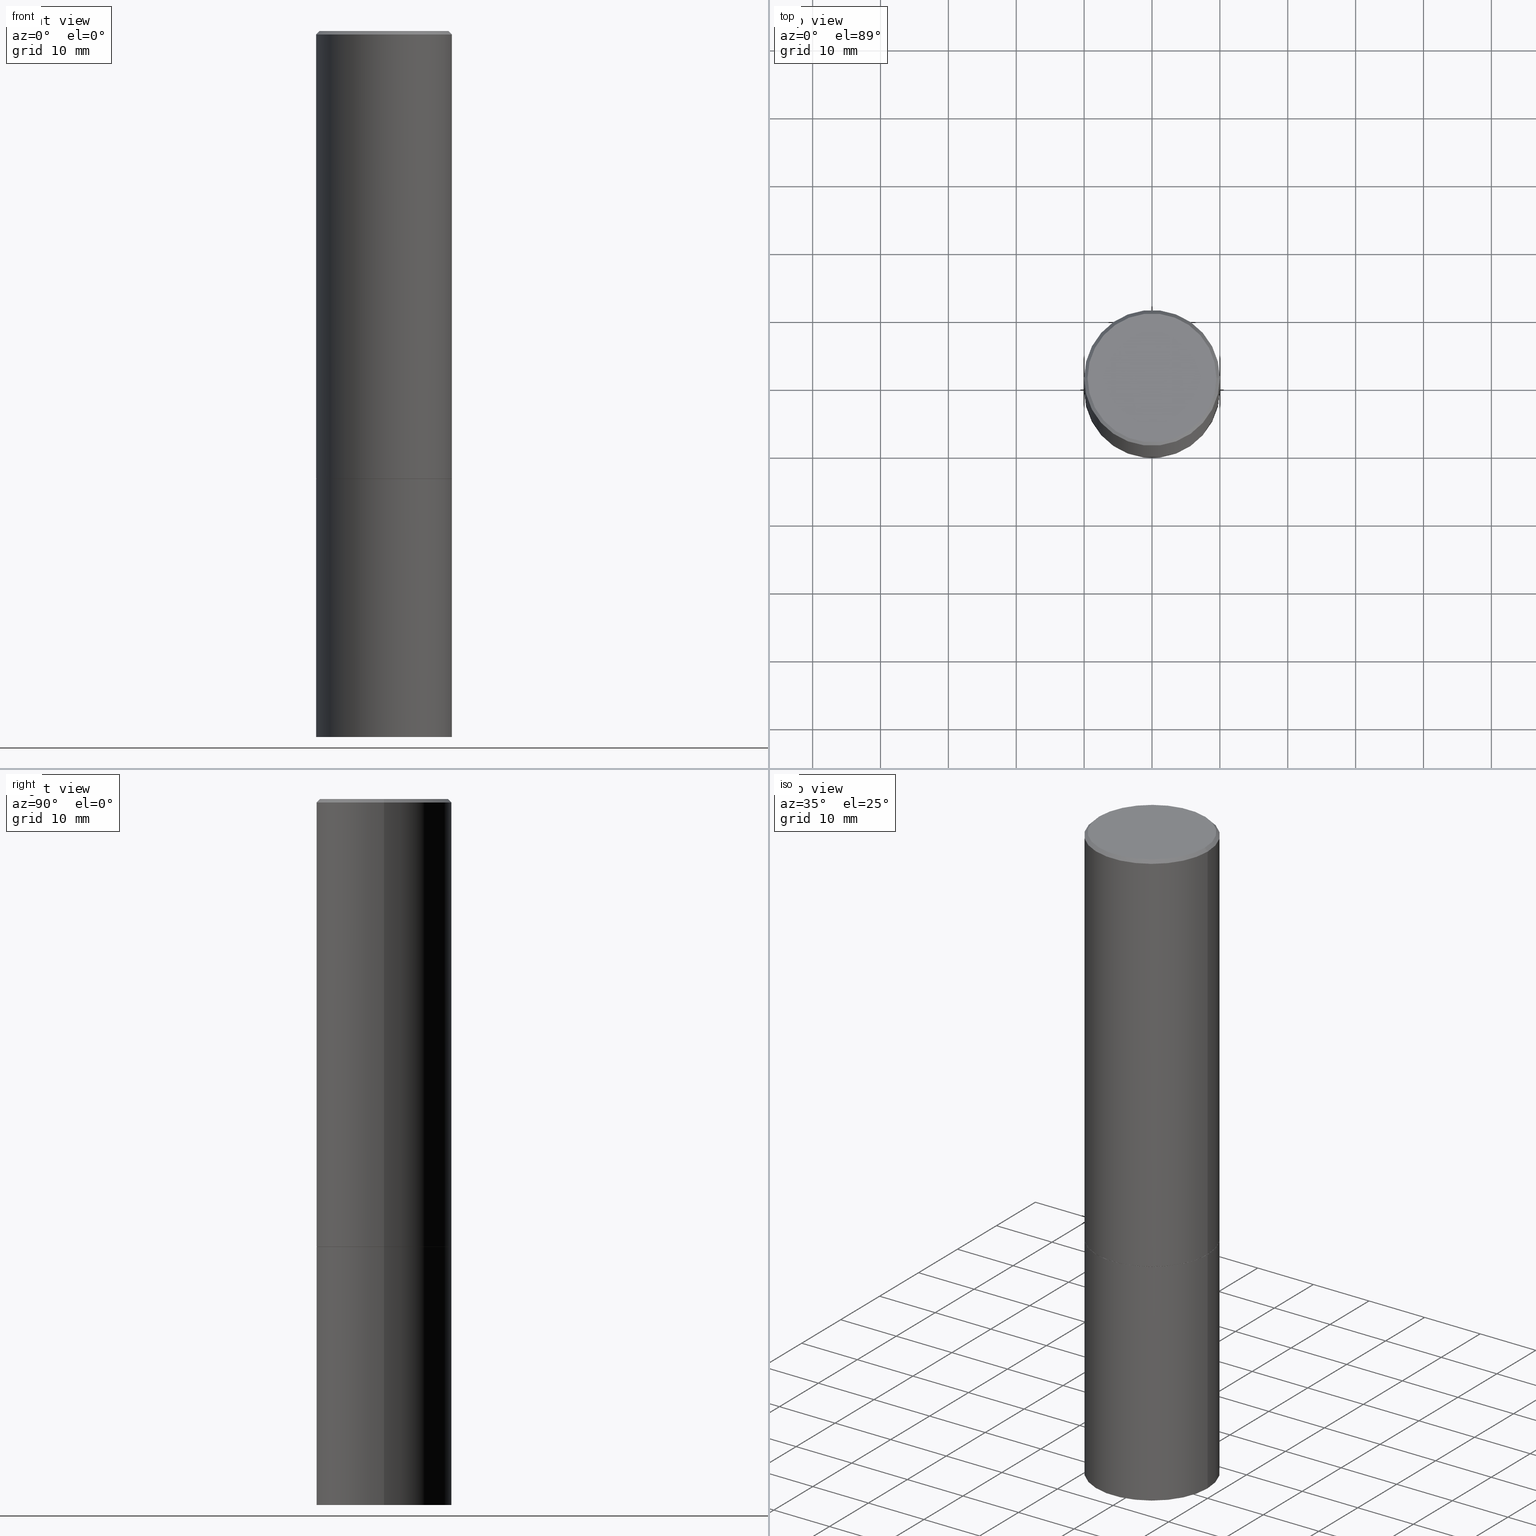
[diagram: canonical four-view strip — front | top / right | iso, engineering-drawing reading convention]
A machine part, canonical four-view strip (front | top / right | iso — engineering-drawing reading convention). The complete STEP part file that produces these views, byte-faithful:
ISO-10303-21;
HEADER;
FILE_DESCRIPTION (( 'STEP AP203' ),
    '1' );
FILE_NAME ('45499.STEP',
    '2024-02-28T09:58:27',
    ( '' ),
    ( '' ),
    'SwSTEP 2.0',
    'SolidWorks 2023',
    '' );
FILE_SCHEMA (( 'CONFIG_CONTROL_DESIGN' ));
ENDSEC;

DATA;
#1 = DIRECTION ( 'NONE',  ( 1.000000000000000000, -6.982962677686265922E-15, 4.876176775795935793E-29 ) ) ;
#2 = AXIS2_PLACEMENT_3D ( 'NONE', #294, #260, #291 ) ;
#3 = EDGE_CURVE ( 'NONE', #96, #55, #353, .T. ) ;
#4 = ADVANCED_FACE ( 'NONE', ( #40 ), #178, .T. ) ;
#5 = CARTESIAN_POINT ( 'NONE',  ( 0.3936999999999996613, -2.770807688499512973E-15, -0.02000000000000010103 ) ) ;
#6 = FACE_OUTER_BOUND ( 'NONE', #313, .T. ) ;
#7 = FACE_OUTER_BOUND ( 'NONE', #62, .T. ) ;
#8 = CC_DESIGN_PERSON_AND_ORGANIZATION_ASSIGNMENT ( #202, #84, ( #140 ) ) ;
#9 = CYLINDRICAL_SURFACE ( 'NONE', #328, 0.3937000000000000499 ) ;
#10 = EDGE_LOOP ( 'NONE', ( #139, #253, #93, #60 ) ) ;
#11 = CYLINDRICAL_SURFACE ( 'NONE', #223, 0.3936999999999998279 ) ;
#12 = CARTESIAN_POINT ( 'NONE',  ( 1.001297202692504215E-28, -1.429587034189326149E-14, -4.094500000000000028 ) ) ;
#13 = DIRECTION ( 'NONE',  ( 0.7071067811870063169, -2.468850131087062801E-15, 0.7071067811860887176 ) ) ;
#14 = CARTESIAN_POINT ( 'NONE',  ( -0.3936999999999996613, 2.679362779428217552E-15, -0.02000000000000010103 ) ) ;
#15 = AXIS2_PLACEMENT_3D ( 'NONE', #155, #295, #351 ) ;
#16 = DIRECTION ( 'NONE',  ( 2.445468806185136597E-29, -3.491481338843145583E-15, -1.000000000000000000 ) ) ;
#17 = EDGE_CURVE ( 'NONE', #96, #143, #222, .T. ) ;
#18 = CIRCLE ( 'NONE', #63, 0.3736999999999996436 ) ;
#19 = VERTEX_POINT ( 'NONE', #148 ) ;
#20 = APPROVAL_STATUS ( 'not_yet_approved' ) ;
#21 = CC_DESIGN_PERSON_AND_ORGANIZATION_ASSIGNMENT ( #336, #95, ( #109 ) ) ;
#22 = DIRECTION ( 'NONE',  ( 1.000000000000000000, -6.982962677686266711E-15, 4.876176775795935793E-29 ) ) ;
#23 = AXIS2_PLACEMENT_3D ( 'NONE', #39, #220, #154 ) ;
#24 = ADVANCED_BREP_SHAPE_REPRESENTATION ( '45499', ( #322, #330, #23 ), #179 ) ;
#25 = APPROVAL_DATE_TIME ( #360, #270 ) ;
#26 = VERTEX_POINT ( 'NONE', #263 ) ;
#27 = COORDINATED_UNIVERSAL_TIME_OFFSET ( 5, 0, .BEHIND. ) ;
#28 = ORIENTED_EDGE ( 'NONE', *, *, #357, .F. ) ;
#29 = CIRCLE ( 'NONE', #268, 0.3926999999999999935 ) ;
#30 = LOCAL_TIME ( 4, 58, 27.00000000000000000, #288 ) ;
#31 = ORIENTED_EDGE ( 'NONE', *, *, #254, .T. ) ;
#32 = ORIENTED_EDGE ( 'NONE', *, *, #189, .T. ) ;
#33 = CARTESIAN_POINT ( 'NONE',  ( 6.351860677185276395E-29, -9.068773629511191193E-15, -2.597400000000001263 ) ) ;
#34 = DIRECTION ( 'NONE',  ( 1.000000000000000000, -6.982962677686265133E-15, 0.000000000000000000 ) ) ;
#35 = AXIS2_PLACEMENT_3D ( 'NONE', #33, #208, #73 ) ;
#36 = DIRECTION ( 'NONE',  ( -1.000000000000000000, 6.982962677686266711E-15, 0.000000000000000000 ) ) ;
#37 = CARTESIAN_POINT ( 'NONE',  ( -2.087702828670439639E-46, 2.980686340760894400E-32, 8.537024980200822558E-18 ) ) ;
#38 = LOCAL_TIME ( 4, 58, 27.00000000000000000, #53 ) ;
#39 = CARTESIAN_POINT ( 'NONE',  ( 0.000000000000000000, 0.000000000000000000, 0.000000000000000000 ) ) ;
#40 = FACE_OUTER_BOUND ( 'NONE', #10, .T. ) ;
#41 = CARTESIAN_POINT ( 'NONE',  ( -0.3936999999999996613, 2.679362779428217552E-15, -0.02000000000000010103 ) ) ;
#42 = ADVANCED_FACE ( 'NONE', ( #6 ), #70, .T. ) ;
#43 = ADVANCED_FACE ( 'NONE', ( #225 ), #338, .F. ) ;
#44 = CARTESIAN_POINT ( 'NONE',  ( -0.3937000000000000499, -8.886660975684131482E-15, -4.094500000000000028 ) ) ;
#45 = CARTESIAN_POINT ( 'NONE',  ( 0.000000000000000000, 0.000000000000000000, 0.000000000000000000 ) ) ;
#46 = ORIENTED_EDGE ( 'NONE', *, *, #77, .T. ) ;
#47 = DESIGN_CONTEXT ( 'detailed design', #94, 'design' ) ;
#48 =( NAMED_UNIT ( * ) SI_UNIT ( $, .STERADIAN. ) SOLID_ANGLE_UNIT ( ) );
#49 = CIRCLE ( 'NONE', #197, 0.3937000000000000499 ) ;
#50 = CARTESIAN_POINT ( 'NONE',  ( -0.3736999999999996436, 2.644447966039786297E-15, 8.537024980182450727E-18 ) ) ;
#51 = DIRECTION ( 'NONE',  ( -1.000000000000000000, 6.982962677686265922E-15, -4.876176775795935793E-29 ) ) ;
#52 = CARTESIAN_POINT ( 'NONE',  ( 4.890937612370298557E-31, -6.982962677686327354E-17, -0.02000000000000010103 ) ) ;
#53 = COORDINATED_UNIVERSAL_TIME_OFFSET ( 5, 0, .BEHIND. ) ;
#54 = DATE_AND_TIME ( #283, #333 ) ;
#55 = VERTEX_POINT ( 'NONE', #134 ) ;
#56 = ORIENTED_EDGE ( 'NONE', *, *, #123, .F. ) ;
#57 = PERSON ( 'UNSPECIFIED', 'UNSPECIFIED', 'UNSPECIFIED', ('UNSPECIFIED'), ('UNSPECIFIED'), ('UNSPECIFIED') ) ;
#58 = EDGE_CURVE ( 'NONE', #85, #339, #184, .T. ) ;
#59 = PERSON_AND_ORGANIZATION_ROLE ( 'classification_officer' ) ;
#60 = ORIENTED_EDGE ( 'NONE', *, *, #254, .F. ) ;
#61 = APPROVAL_STATUS ( 'not_yet_approved' ) ;
#62 = EDGE_LOOP ( 'NONE', ( #355, #170, #331, #198 ) ) ;
#63 = AXIS2_PLACEMENT_3D ( 'NONE', #37, #128, #124 ) ;
#64 = ORIENTED_EDGE ( 'NONE', *, *, #252, .T. ) ;
#65 = DIRECTION ( 'NONE',  ( -1.000000000000000000, 6.982962677686265922E-15, -4.876176775795935793E-29 ) ) ;
#66 = DIRECTION ( 'NONE',  ( 1.000000000000000000, -6.982962677686265133E-15, 0.000000000000000000 ) ) ;
#67 = CARTESIAN_POINT ( 'NONE',  ( 0.3736999999999996436, -2.667287895133365992E-15, 8.537024980219274507E-18 ) ) ;
#68 = DIRECTION ( 'NONE',  ( 1.000000000000000000, -6.982962677686265922E-15, 4.876176775795935793E-29 ) ) ;
#69 = AXIS2_PLACEMENT_3D ( 'NONE', #12, #153, #209 ) ;
#70 = CYLINDRICAL_SURFACE ( 'NONE', #285, 0.3936999999999998279 ) ;
#71 = AXIS2_PLACEMENT_3D ( 'NONE', #165, #326, #51 ) ;
#72 = DIRECTION ( 'NONE',  ( 1.000000000000000000, -6.982962677686267499E-15, 0.000000000000000000 ) ) ;
#73 = DIRECTION ( 'NONE',  ( 1.000000000000000000, -6.982962677686267499E-15, 0.000000000000000000 ) ) ;
#74 = CC_DESIGN_APPROVAL ( #80, ( #140 ) ) ;
#75 = PLANE ( 'NONE',  #89 ) ;
#76 = EDGE_CURVE ( 'NONE', #143, #257, #107, .T. ) ;
#77 = EDGE_CURVE ( 'NONE', #339, #19, #211, .T. ) ;
#78 =( CONVERSION_BASED_UNIT ( 'INCH', #329 ) LENGTH_UNIT ( ) NAMED_UNIT ( #344 ) );
#79 = CARTESIAN_POINT ( 'NONE',  ( 6.354306145991457514E-29, -9.072265110850029467E-15, -2.598399999999999821 ) ) ;
#80 = APPROVAL ( #20, 'UNSPECIFIED' ) ;
#81 = CONICAL_SURFACE ( 'NONE', #255, 0.3926999999999999935, 0.7853981633980972044 ) ;
#82 = SECURITY_CLASSIFICATION_LEVEL ( 'unclassified' ) ;
#83 = PRODUCT_DEFINITION_SHAPE ( 'NONE', 'NONE',  #140 ) ;
#84 = PERSON_AND_ORGANIZATION_ROLE ( 'creator' ) ;
#85 = VERTEX_POINT ( 'NONE', #50 ) ;
#86 = DATE_TIME_ROLE ( 'creation_date' ) ;
#87 = EDGE_LOOP ( 'NONE', ( #277, #282, #169, #46 ) ) ;
#88 = VECTOR ( 'NONE', #130, 39.37007874015748143 ) ;
#89 = AXIS2_PLACEMENT_3D ( 'NONE', #186, #352, #269 ) ;
#90 = ADVANCED_FACE ( 'NONE', ( #248 ), #81, .T. ) ;
#91 = ADVANCED_FACE ( 'NONE', ( #166 ), #11, .T. ) ;
#92 = SHAPE_DEFINITION_REPRESENTATION ( #83, #24 ) ;
#93 = ORIENTED_EDGE ( 'NONE', *, *, #357, .T. ) ;
#94 = APPLICATION_CONTEXT ( 'configuration controlled 3d designs of mechanical parts and assemblies' ) ;
#95 = PERSON_AND_ORGANIZATION_ROLE ( 'design_supplier' ) ;
#96 = VERTEX_POINT ( 'NONE', #44 ) ;
#97 = LINE ( 'NONE', #182, #192 ) ;
#98 = VECTOR ( 'NONE', #122, 39.37007874015748143 ) ;
#99 = CARTESIAN_POINT ( 'NONE',  ( 6.354306145991459756E-29, -9.072265110850031044E-15, -2.598400000000000265 ) ) ;
#100 = CARTESIAN_POINT ( 'NONE',  ( 4.890937612370298557E-31, -6.982962677686327354E-17, -0.02000000000000010103 ) ) ;
#101 = AXIS2_PLACEMENT_3D ( 'NONE', #99, #346, #264 ) ;
#102 = DIRECTION ( 'NONE',  ( -2.445468806185136597E-29, 3.491481338843145583E-15, 1.000000000000000000 ) ) ;
#103 = PLANE ( 'NONE',  #71 ) ;
#104 = CLOSED_SHELL ( 'NONE', ( #90, #91, #279, #149, #42, #4, #43, #319 ) ) ;
#105 = AXIS2_PLACEMENT_3D ( 'NONE', #206, #121, #324 ) ;
#106 = EDGE_CURVE ( 'NONE', #306, #299, #349, .T. ) ;
#107 = LINE ( 'NONE', #137, #364 ) ;
#108 = DIRECTION ( 'NONE',  ( -2.445468806185136877E-29, 3.491481338843145188E-15, 1.000000000000000000 ) ) ;
#109 = PRODUCT_DEFINITION_FORMATION_WITH_SPECIFIED_SOURCE ( 'ANY', '', #258, .NOT_KNOWN. ) ;
#110 = DATE_AND_TIME ( #361, #30 ) ;
#111 = CARTESIAN_POINT ( 'NONE',  ( 0.000000000000000000, 0.000000000000000000, 0.000000000000000000 ) ) ;
#112 = PERSON_AND_ORGANIZATION ( #57, #345 ) ;
#113 = EDGE_LOOP ( 'NONE', ( #64, #157 ) ) ;
#114 = APPROVAL_ROLE ( '' ) ;
#115 = EDGE_CURVE ( 'NONE', #196, #85, #365, .T. ) ;
#116 = ORIENTED_EDGE ( 'NONE', *, *, #241, .F. ) ;
#117 = DIRECTION ( 'NONE',  ( -2.438088387897960049E-29, 3.491481338843145188E-15, 1.000000000000000000 ) ) ;
#118 = EDGE_LOOP ( 'NONE', ( #32, #358, #363, #246 ) ) ;
#119 = APPROVAL_PERSON_ORGANIZATION ( #112, #286, #114 ) ;
#120 = CALENDAR_DATE ( 2024, 28, 2 ) ;
#121 = DIRECTION ( 'NONE',  ( -2.445468806185136597E-29, 3.491481338843145583E-15, 1.000000000000000000 ) ) ;
#122 = DIRECTION ( 'NONE',  ( 0.7071067811865466846, -7.319954787623252890E-15, -0.7071067811865483499 ) ) ;
#123 = EDGE_CURVE ( 'NONE', #26, #19, #151, .T. ) ;
#124 = DIRECTION ( 'NONE',  ( 1.000000000000000000, -6.982962677686266711E-15, 4.876212485538980163E-29 ) ) ;
#125 = EDGE_CURVE ( 'NONE', #55, #257, #49, .T. ) ;
#126 = AXIS2_PLACEMENT_3D ( 'NONE', #52, #159, #303 ) ;
#127 = AXIS2_PLACEMENT_3D ( 'NONE', #215, #272, #356 ) ;
#128 = DIRECTION ( 'NONE',  ( -2.445468806185136597E-29, 3.491481338843145583E-15, 1.000000000000000000 ) ) ;
#129 = CC_DESIGN_DATE_AND_TIME_ASSIGNMENT ( #110, #281, ( #199 ) ) ;
#130 = DIRECTION ( 'NONE',  ( -2.445468806185136877E-29, 3.491481338843145188E-15, 1.000000000000000000 ) ) ;
#131 = CARTESIAN_POINT ( 'NONE',  ( 0.000000000000000000, 0.000000000000000000, 0.000000000000000000 ) ) ;
#132 = EDGE_CURVE ( 'NONE', #299, #341, #97, .T. ) ;
#133 = CARTESIAN_POINT ( 'NONE',  ( 0.3926999999999999935, -1.181447455437742667E-14, -2.598399999999999821 ) ) ;
#134 = CARTESIAN_POINT ( 'NONE',  ( -0.3937000000000000499, -8.886660975684131482E-15, -2.598400000000000265 ) ) ;
#135 = APPLICATION_PROTOCOL_DEFINITION ( 'international standard', 'config_control_design', 1994, #221 ) ;
#136 = DATE_AND_TIME ( #226, #234 ) ;
#137 = CARTESIAN_POINT ( 'NONE',  ( 0.3937000000000000499, -2.749192406205083217E-15, 1.919750796630860172E-29 ) ) ;
#138 = PERSON_AND_ORGANIZATION ( #57, #345 ) ;
#139 = ORIENTED_EDGE ( 'NONE', *, *, #132, .F. ) ;
#140 = PRODUCT_DEFINITION ( 'UNKNOWN', '', #109, #47 ) ;
#141 = DATE_AND_TIME ( #120, #321 ) ;
#142 = ORIENTED_EDGE ( 'NONE', *, *, #106, .F. ) ;
#143 = VERTEX_POINT ( 'NONE', #150 ) ;
#144 = ORIENTED_EDGE ( 'NONE', *, *, #189, .F. ) ;
#145 = PLANE ( 'NONE',  #308 ) ;
#146 = DIRECTION ( 'NONE',  ( -0.7071067811870063169, 7.493145998872012346E-15, 0.7071067811860887176 ) ) ;
#147 = VECTOR ( 'NONE', #210, 39.37007874015748143 ) ;
#148 = CARTESIAN_POINT ( 'NONE',  ( 0.3936999999999996613, -2.770807688499512973E-15, -0.02000000000000010103 ) ) ;
#149 = ADVANCED_FACE ( 'NONE', ( #237 ), #245, .T. ) ;
#150 = CARTESIAN_POINT ( 'NONE',  ( 0.3937000000000000499, -1.704506274809834471E-14, -4.094500000000000028 ) ) ;
#151 = LINE ( 'NONE', #293, #167 ) ;
#152 = DIRECTION ( 'NONE',  ( -2.445468806185136597E-29, 3.491481338843145583E-15, 1.000000000000000000 ) ) ;
#153 = DIRECTION ( 'NONE',  ( -2.445468806185136597E-29, 3.491481338843145583E-15, 1.000000000000000000 ) ) ;
#154 = DIRECTION ( 'NONE',  ( 1.000000000000000000, 0.000000000000000000, 0.000000000000000000 ) ) ;
#155 = CARTESIAN_POINT ( 'NONE',  ( 6.354306145991457514E-29, -9.072265110850029467E-15, -2.598399999999999821 ) ) ;
#156 = CARTESIAN_POINT ( 'NONE',  ( 0.3926999999999999935, -1.181447455437742667E-14, -2.598399999999999821 ) ) ;
#157 = ORIENTED_EDGE ( 'NONE', *, *, #125, .T. ) ;
#158 =( NAMED_UNIT ( * ) PLANE_ANGLE_UNIT ( ) SI_UNIT ( $, .RADIAN. ) );
#159 = DIRECTION ( 'NONE',  ( -2.445468806185136597E-29, 3.491481338843145583E-15, 1.000000000000000000 ) ) ;
#160 = VECTOR ( 'NONE', #243, 39.37007874015748143 ) ;
#161 = CC_DESIGN_APPROVAL ( #286, ( #109 ) ) ;
#162 = CARTESIAN_POINT ( 'NONE',  ( -0.3937000000000000499, 2.797406750687514786E-15, -1.936584745033356735E-29 ) ) ;
#163 = APPLICATION_PROTOCOL_DEFINITION ( 'international standard', 'config_control_design', 1994, #94 ) ;
#164 = ORIENTED_EDGE ( 'NONE', *, *, #76, .T. ) ;
#165 = CARTESIAN_POINT ( 'NONE',  ( 2.609533152651354648E-15, 0.3736999999999996436, -1.300498063835581828E-15 ) ) ;
#166 = FACE_OUTER_BOUND ( 'NONE', #227, .T. ) ;
#167 = VECTOR ( 'NONE', #323, 39.37007874015748143 ) ;
#168 = PERSON_AND_ORGANIZATION ( #57, #345 ) ;
#169 = ORIENTED_EDGE ( 'NONE', *, *, #58, .T. ) ;
#170 = ORIENTED_EDGE ( 'NONE', *, *, #271, .T. ) ;
#171 = ORIENTED_EDGE ( 'NONE', *, *, #123, .T. ) ;
#172 = APPROVAL_DATE_TIME ( #141, #286 ) ;
#173 = CIRCLE ( 'NONE', #101, 0.3937000000000000499 ) ;
#174 = ORIENTED_EDGE ( 'NONE', *, *, #273, .F. ) ;
#175 = DIRECTION ( 'NONE',  ( -2.445468806185136597E-29, 3.491481338843145583E-15, 1.000000000000000000 ) ) ;
#176 = ADVANCED_FACE ( 'NONE', ( #350 ), #9, .T. ) ;
#177 = DIRECTION ( 'NONE',  ( -2.445468806185136597E-29, 3.491481338843145583E-15, 1.000000000000000000 ) ) ;
#178 = CONICAL_SURFACE ( 'NONE', #15, 0.3926999999999999935, 0.7853981633980972044 ) ;
#179 =( GEOMETRIC_REPRESENTATION_CONTEXT ( 3 ) GLOBAL_UNCERTAINTY_ASSIGNED_CONTEXT ( ( #181 ) ) GLOBAL_UNIT_ASSIGNED_CONTEXT ( ( #78, #158, #48 ) ) REPRESENTATION_CONTEXT ( 'NONE', 'WORKASPACE' ) );
#180 = DIRECTION ( 'NONE',  ( 2.445468806185136597E-29, -3.491481338843145583E-15, -1.000000000000000000 ) ) ;
#181 = UNCERTAINTY_MEASURE_WITH_UNIT (LENGTH_MEASURE( 1.000000000000000082E-05 ), #78, 'distance_accuracy_value', 'NONE');
#182 = CARTESIAN_POINT ( 'NONE',  ( -0.3926999999999999935, -6.281963787520115688E-15, -2.598399999999999821 ) ) ;
#183 = LINE ( 'NONE', #156, #292 ) ;
#184 = LINE ( 'NONE', #14, #160 ) ;
#185 = APPROVAL_PERSON_ORGANIZATION ( #332, #80, #256 ) ;
#186 = CARTESIAN_POINT ( 'NONE',  ( 2.749192406205146325E-15, 0.3936999999999909461, -2.598400000000002041 ) ) ;
#187 = FACE_OUTER_BOUND ( 'NONE', #289, .T. ) ;
#188 = DIRECTION ( 'NONE',  ( -2.445468806185136597E-29, 3.491481338843145583E-15, 1.000000000000000000 ) ) ;
#189 = EDGE_CURVE ( 'NONE', #143, #96, #261, .T. ) ;
#190 = EDGE_CURVE ( 'NONE', #85, #196, #18, .T. ) ;
#191 = PERSON_AND_ORGANIZATION ( #57, #345 ) ;
#192 = VECTOR ( 'NONE', #146, 39.37007874015748143 ) ;
#193 =( LENGTH_UNIT ( ) NAMED_UNIT ( * ) SI_UNIT ( $, .METRE. ) );
#194 = DIRECTION ( 'NONE',  ( 1.000000000000000000, -6.982962677686266711E-15, 4.876176775795935793E-29 ) ) ;
#195 = APPROVAL_ROLE ( '' ) ;
#196 = VERTEX_POINT ( 'NONE', #67 ) ;
#197 = AXIS2_PLACEMENT_3D ( 'NONE', #265, #152, #72 ) ;
#198 = ORIENTED_EDGE ( 'NONE', *, *, #58, .F. ) ;
#199 = SECURITY_CLASSIFICATION ( '', '', #82 ) ;
#200 = APPROVAL_STATUS ( 'not_yet_approved' ) ;
#201 = ORIENTED_EDGE ( 'NONE', *, *, #17, .T. ) ;
#202 = PERSON_AND_ORGANIZATION ( #57, #345 ) ;
#203 = EDGE_LOOP ( 'NONE', ( #251, #201, #164, #301 ) ) ;
#204 = ORIENTED_EDGE ( 'NONE', *, *, #132, .T. ) ;
#205 = CIRCLE ( 'NONE', #35, 0.3937000000000000499 ) ;
#206 = CARTESIAN_POINT ( 'NONE',  ( 1.001297202692504215E-28, -1.429587034189326149E-14, -4.094500000000000028 ) ) ;
#207 = APPROVAL_PERSON_ORGANIZATION ( #224, #270, #195 ) ;
#208 = DIRECTION ( 'NONE',  ( -2.445468806185136597E-29, 3.491481338843145583E-15, 1.000000000000000000 ) ) ;
#209 = DIRECTION ( 'NONE',  ( 1.000000000000000000, -6.982962677686267499E-15, 0.000000000000000000 ) ) ;
#210 = DIRECTION ( 'NONE',  ( -2.445468806185136877E-29, 3.491481338843145188E-15, 1.000000000000000000 ) ) ;
#211 = CIRCLE ( 'NONE', #126, 0.3936999999999996613 ) ;
#212 = CIRCLE ( 'NONE', #127, 0.3937000000000000499 ) ;
#213 = DIRECTION ( 'NONE',  ( 2.438088387897960049E-29, -3.491481338843145188E-15, -1.000000000000000000 ) ) ;
#214 = EDGE_LOOP ( 'NONE', ( #144, #309 ) ) ;
#215 = CARTESIAN_POINT ( 'NONE',  ( 6.351860677185276395E-29, -9.068773629511191193E-15, -2.597400000000001263 ) ) ;
#216 = DIRECTION ( 'NONE',  ( 1.000000000000000000, -6.982962677686265922E-15, 4.876176775795935793E-29 ) ) ;
#217 = AXIS2_PLACEMENT_3D ( 'NONE', #366, #177, #66 ) ;
#218 = CYLINDRICAL_SURFACE ( 'NONE', #276, 0.3937000000000000499 ) ;
#219 = ADVANCED_FACE ( 'NONE', ( #317 ), #145, .T. ) ;
#220 = DIRECTION ( 'NONE',  ( 0.000000000000000000, 0.000000000000000000, 1.000000000000000000 ) ) ;
#221 = APPLICATION_CONTEXT ( 'configuration controlled 3d designs of mechanical parts and assemblies' ) ;
#222 = CIRCLE ( 'NONE', #69, 0.3937000000000000499 ) ;
#223 = AXIS2_PLACEMENT_3D ( 'NONE', #111, #300, #22 ) ;
#224 = PERSON_AND_ORGANIZATION ( #57, #345 ) ;
#225 = FACE_OUTER_BOUND ( 'NONE', #311, .T. ) ;
#226 = CALENDAR_DATE ( 2024, 28, 2 ) ;
#227 = EDGE_LOOP ( 'NONE', ( #284, #342, #116, #56 ) ) ;
#228 = CIRCLE ( 'NONE', #267, 0.3936999999999996613 ) ;
#229 = ORIENTED_EDGE ( 'NONE', *, *, #190, .T. ) ;
#230 = CC_DESIGN_SECURITY_CLASSIFICATION ( #199, ( #109 ) ) ;
#231 = CARTESIAN_POINT ( 'NONE',  ( 6.354306145991459756E-29, -9.072265110850031044E-15, -2.598400000000000265 ) ) ;
#232 = CC_DESIGN_PERSON_AND_ORGANIZATION_ASSIGNMENT ( #168, #312, ( #109 ) ) ;
#233 = EDGE_CURVE ( 'NONE', #299, #306, #29, .T. ) ;
#234 = LOCAL_TIME ( 4, 58, 27.00000000000000000, #305 ) ;
#235 = CARTESIAN_POINT ( 'NONE',  ( 4.890937612370298557E-31, -6.982962677686327354E-17, -0.02000000000000010103 ) ) ;
#236 = LINE ( 'NONE', #347, #147 ) ;
#237 = FACE_OUTER_BOUND ( 'NONE', #87, .T. ) ;
#238 = AXIS2_PLACEMENT_3D ( 'NONE', #235, #180, #36 ) ;
#239 = CARTESIAN_POINT ( 'NONE',  ( -0.3926999999999999935, -6.276665333171897231E-15, -2.598399999999999821 ) ) ;
#240 = MECHANICAL_CONTEXT ( 'NONE', #221, 'mechanical' ) ;
#241 = EDGE_CURVE ( 'NONE', #19, #339, #228, .T. ) ;
#242 = FACE_OUTER_BOUND ( 'NONE', #113, .T. ) ;
#243 = DIRECTION ( 'NONE',  ( -0.7071067811865466846, 2.468850131082247989E-15, -0.7071067811865483499 ) ) ;
#244 = CLOSED_SHELL ( 'NONE', ( #280, #219, #318, #176 ) ) ;
#245 = CONICAL_SURFACE ( 'NONE', #238, 0.3936999999999996613, 0.7853981633974471688 ) ;
#246 = ORIENTED_EDGE ( 'NONE', *, *, #76, .F. ) ;
#247 = DIRECTION ( 'NONE',  ( -2.445468806185136597E-29, 3.491481338843145583E-15, 1.000000000000000000 ) ) ;
#248 = FACE_OUTER_BOUND ( 'NONE', #337, .T. ) ;
#249 = CC_DESIGN_APPROVAL ( #270, ( #199 ) ) ;
#250 = CALENDAR_DATE ( 2024, 28, 2 ) ;
#251 = ORIENTED_EDGE ( 'NONE', *, *, #3, .F. ) ;
#252 = EDGE_CURVE ( 'NONE', #257, #55, #173, .T. ) ;
#253 = ORIENTED_EDGE ( 'NONE', *, *, #233, .T. ) ;
#254 = EDGE_CURVE ( 'NONE', #341, #26, #205, .T. ) ;
#255 = AXIS2_PLACEMENT_3D ( 'NONE', #79, #188, #359 ) ;
#256 = APPROVAL_ROLE ( '' ) ;
#257 = VERTEX_POINT ( 'NONE', #262 ) ;
#258 = PRODUCT ( '45499', '45499', '', ( #240 ) ) ;
#259 = ORIENTED_EDGE ( 'NONE', *, *, #77, .F. ) ;
#260 = DIRECTION ( 'NONE',  ( -2.445468806185136597E-29, 3.491481338843145583E-15, 1.000000000000000000 ) ) ;
#261 = CIRCLE ( 'NONE', #105, 0.3937000000000000499 ) ;
#262 = CARTESIAN_POINT ( 'NONE',  ( 0.3937000000000000499, -1.182145751705511584E-14, -2.598400000000000265 ) ) ;
#263 = CARTESIAN_POINT ( 'NONE',  ( 0.3937000000000000499, -1.181796603571627441E-14, -2.597400000000001263 ) ) ;
#264 = DIRECTION ( 'NONE',  ( 1.000000000000000000, -6.982962677686267499E-15, 0.000000000000000000 ) ) ;
#265 = CARTESIAN_POINT ( 'NONE',  ( 6.354306145991459756E-29, -9.072265110850031044E-15, -2.598400000000000265 ) ) ;
#266 = CARTESIAN_POINT ( 'NONE',  ( 0.000000000000000000, 0.000000000000000000, 0.000000000000000000 ) ) ;
#267 = AXIS2_PLACEMENT_3D ( 'NONE', #343, #175, #348 ) ;
#268 = AXIS2_PLACEMENT_3D ( 'NONE', #290, #315, #34 ) ;
#269 = DIRECTION ( 'NONE',  ( -1.000000000000000000, 6.982962677686265922E-15, -4.876176775795935793E-29 ) ) ;
#270 = APPROVAL ( #200, 'UNSPECIFIED' ) ;
#271 = EDGE_CURVE ( 'NONE', #196, #19, #296, .T. ) ;
#272 = DIRECTION ( 'NONE',  ( -2.445468806185136597E-29, 3.491481338843145583E-15, 1.000000000000000000 ) ) ;
#273 = EDGE_CURVE ( 'NONE', #341, #339, #236, .T. ) ;
#274 = FACE_OUTER_BOUND ( 'NONE', #118, .T. ) ;
#275 = COORDINATED_UNIVERSAL_TIME_OFFSET ( 5, 0, .BEHIND. ) ;
#276 = AXIS2_PLACEMENT_3D ( 'NONE', #131, #247, #216 ) ;
#277 = ORIENTED_EDGE ( 'NONE', *, *, #271, .F. ) ;
#278 = PRODUCT_RELATED_PRODUCT_CATEGORY ( 'detail', '', ( #258 ) ) ;
#279 = ADVANCED_FACE ( 'NONE', ( #7 ), #354, .T. ) ;
#280 = ADVANCED_FACE ( 'NONE', ( #274 ), #218, .T. ) ;
#281 = DATE_TIME_ROLE ( 'classification_date' ) ;
#282 = ORIENTED_EDGE ( 'NONE', *, *, #190, .F. ) ;
#283 = CALENDAR_DATE ( 2024, 28, 2 ) ;
#284 = ORIENTED_EDGE ( 'NONE', *, *, #307, .T. ) ;
#285 = AXIS2_PLACEMENT_3D ( 'NONE', #45, #334, #194 ) ;
#286 = APPROVAL ( #61, 'UNSPECIFIED' ) ;
#287 = AXIS2_PLACEMENT_3D ( 'NONE', #100, #16, #304 ) ;
#288 = COORDINATED_UNIVERSAL_TIME_OFFSET ( 5, 0, .BEHIND. ) ;
#289 = EDGE_LOOP ( 'NONE', ( #229, #297 ) ) ;
#290 = CARTESIAN_POINT ( 'NONE',  ( 6.354306145991457514E-29, -9.072265110850029467E-15, -2.598399999999999821 ) ) ;
#291 = DIRECTION ( 'NONE',  ( 1.000000000000000000, -6.982962677686266711E-15, 4.876212485538980163E-29 ) ) ;
#292 = VECTOR ( 'NONE', #13, 39.37007874015748143 ) ;
#293 = CARTESIAN_POINT ( 'NONE',  ( 0.3936999999999998279, -2.749192406205082033E-15, 1.919750796630859051E-29 ) ) ;
#294 = CARTESIAN_POINT ( 'NONE',  ( -2.087702828670439639E-46, 2.980686340760894400E-32, 8.537024980200822558E-18 ) ) ;
#295 = DIRECTION ( 'NONE',  ( -2.445468806185136597E-29, 3.491481338843145583E-15, 1.000000000000000000 ) ) ;
#296 = LINE ( 'NONE', #5, #98 ) ;
#297 = ORIENTED_EDGE ( 'NONE', *, *, #115, .T. ) ;
#298 = CC_DESIGN_PERSON_AND_ORGANIZATION_ASSIGNMENT ( #191, #302, ( #258 ) ) ;
#299 = VERTEX_POINT ( 'NONE', #239 ) ;
#300 = DIRECTION ( 'NONE',  ( -2.445468806185136597E-29, 3.491481338843145583E-15, 1.000000000000000000 ) ) ;
#301 = ORIENTED_EDGE ( 'NONE', *, *, #125, .F. ) ;
#302 = PERSON_AND_ORGANIZATION_ROLE ( 'design_owner' ) ;
#303 = DIRECTION ( 'NONE',  ( 1.000000000000000000, -6.982962677686266711E-15, 0.000000000000000000 ) ) ;
#304 = DIRECTION ( 'NONE',  ( -1.000000000000000000, 6.982962677686266711E-15, 0.000000000000000000 ) ) ;
#305 = COORDINATED_UNIVERSAL_TIME_OFFSET ( 5, 0, .BEHIND. ) ;
#306 = VERTEX_POINT ( 'NONE', #133 ) ;
#307 = EDGE_CURVE ( 'NONE', #26, #341, #212, .T. ) ;
#308 = AXIS2_PLACEMENT_3D ( 'NONE', #316, #213, #65 ) ;
#309 = ORIENTED_EDGE ( 'NONE', *, *, #17, .F. ) ;
#310 = APPROVAL_DATE_TIME ( #136, #80 ) ;
#311 = EDGE_LOOP ( 'NONE', ( #142, #340 ) ) ;
#312 = PERSON_AND_ORGANIZATION_ROLE ( 'creator' ) ;
#313 = EDGE_LOOP ( 'NONE', ( #174, #31, #171, #259 ) ) ;
#314 = ORIENTED_EDGE ( 'NONE', *, *, #106, .T. ) ;
#315 = DIRECTION ( 'NONE',  ( -2.445468806185136597E-29, 3.491481338843145583E-15, 1.000000000000000000 ) ) ;
#316 = CARTESIAN_POINT ( 'NONE',  ( 2.749192406205183007E-15, 0.3936999999999857280, -4.094500000000001805 ) ) ;
#317 = FACE_OUTER_BOUND ( 'NONE', #214, .T. ) ;
#318 = ADVANCED_FACE ( 'NONE', ( #242 ), #75, .F. ) ;
#319 = ADVANCED_FACE ( 'NONE', ( #187 ), #103, .F. ) ;
#320 = AXIS2_PLACEMENT_3D ( 'NONE', #231, #117, #68 ) ;
#321 = LOCAL_TIME ( 4, 58, 27.00000000000000000, #27 ) ;
#322 = MANIFOLD_SOLID_BREP ( 'Body-Move/Copy2[1]', #244 ) ;
#323 = DIRECTION ( 'NONE',  ( -2.445468806185136877E-29, 3.491481338843145188E-15, 1.000000000000000000 ) ) ;
#324 = DIRECTION ( 'NONE',  ( 1.000000000000000000, -6.982962677686267499E-15, 0.000000000000000000 ) ) ;
#325 = CC_DESIGN_PERSON_AND_ORGANIZATION_ASSIGNMENT ( #138, #59, ( #199 ) ) ;
#326 = DIRECTION ( 'NONE',  ( 2.438088387897960049E-29, -3.491481338843145188E-15, -1.000000000000000000 ) ) ;
#327 = CARTESIAN_POINT ( 'NONE',  ( -0.3937000000000000499, -1.771894877456511079E-15, -2.597400000000001263 ) ) ;
#328 = AXIS2_PLACEMENT_3D ( 'NONE', #266, #102, #1 ) ;
#329 = LENGTH_MEASURE_WITH_UNIT ( LENGTH_MEASURE( 0.02539999999999999897 ), #193 );
#330 = MANIFOLD_SOLID_BREP ( 'Body-Move/Copy2[2]', #104 ) ;
#331 = ORIENTED_EDGE ( 'NONE', *, *, #241, .T. ) ;
#332 = PERSON_AND_ORGANIZATION ( #57, #345 ) ;
#333 = LOCAL_TIME ( 4, 58, 27.00000000000000000, #275 ) ;
#334 = DIRECTION ( 'NONE',  ( -2.445468806185136597E-29, 3.491481338843145583E-15, 1.000000000000000000 ) ) ;
#335 = CC_DESIGN_DATE_AND_TIME_ASSIGNMENT ( #54, #86, ( #140 ) ) ;
#336 = PERSON_AND_ORGANIZATION ( #57, #345 ) ;
#337 = EDGE_LOOP ( 'NONE', ( #314, #204, #362, #28 ) ) ;
#338 = PLANE ( 'NONE',  #320 ) ;
#339 = VERTEX_POINT ( 'NONE', #41 ) ;
#340 = ORIENTED_EDGE ( 'NONE', *, *, #233, .F. ) ;
#341 = VERTEX_POINT ( 'NONE', #327 ) ;
#342 = ORIENTED_EDGE ( 'NONE', *, *, #273, .T. ) ;
#343 = CARTESIAN_POINT ( 'NONE',  ( 4.890937612370298557E-31, -6.982962677686327354E-17, -0.02000000000000010103 ) ) ;
#344 = DIMENSIONAL_EXPONENTS ( 1.000000000000000000, 0.000000000000000000, 0.000000000000000000, 0.000000000000000000, 0.000000000000000000, 0.000000000000000000, 0.000000000000000000 ) ;
#345 = ORGANIZATION ( 'UNSPECIFIED', 'UNSPECIFIED', '' ) ;
#346 = DIRECTION ( 'NONE',  ( -2.445468806185136597E-29, 3.491481338843145583E-15, 1.000000000000000000 ) ) ;
#347 = CARTESIAN_POINT ( 'NONE',  ( -0.3936999999999998279, 2.797406750687513209E-15, -1.936584745033355614E-29 ) ) ;
#348 = DIRECTION ( 'NONE',  ( 1.000000000000000000, -6.982962677686266711E-15, 0.000000000000000000 ) ) ;
#349 = CIRCLE ( 'NONE', #217, 0.3926999999999999935 ) ;
#350 = FACE_OUTER_BOUND ( 'NONE', #203, .T. ) ;
#351 = DIRECTION ( 'NONE',  ( 1.000000000000000000, -6.982962677686265133E-15, 0.000000000000000000 ) ) ;
#352 = DIRECTION ( 'NONE',  ( 2.438088387897960049E-29, -3.491481338843145188E-15, -1.000000000000000000 ) ) ;
#353 = LINE ( 'NONE', #162, #88 ) ;
#354 = CONICAL_SURFACE ( 'NONE', #287, 0.3936999999999996613, 0.7853981633974471688 ) ;
#355 = ORIENTED_EDGE ( 'NONE', *, *, #115, .F. ) ;
#356 = DIRECTION ( 'NONE',  ( 1.000000000000000000, -6.982962677686267499E-15, 0.000000000000000000 ) ) ;
#357 = EDGE_CURVE ( 'NONE', #306, #26, #183, .T. ) ;
#358 = ORIENTED_EDGE ( 'NONE', *, *, #3, .T. ) ;
#359 = DIRECTION ( 'NONE',  ( 1.000000000000000000, -6.982962677686265133E-15, 0.000000000000000000 ) ) ;
#360 = DATE_AND_TIME ( #250, #38 ) ;
#361 = CALENDAR_DATE ( 2024, 28, 2 ) ;
#362 = ORIENTED_EDGE ( 'NONE', *, *, #307, .F. ) ;
#363 = ORIENTED_EDGE ( 'NONE', *, *, #252, .F. ) ;
#364 = VECTOR ( 'NONE', #108, 39.37007874015748143 ) ;
#365 = CIRCLE ( 'NONE', #2, 0.3736999999999996436 ) ;
#366 = CARTESIAN_POINT ( 'NONE',  ( 6.354306145991457514E-29, -9.072265110850029467E-15, -2.598399999999999821 ) ) ;
ENDSEC;
END-ISO-10303-21;
